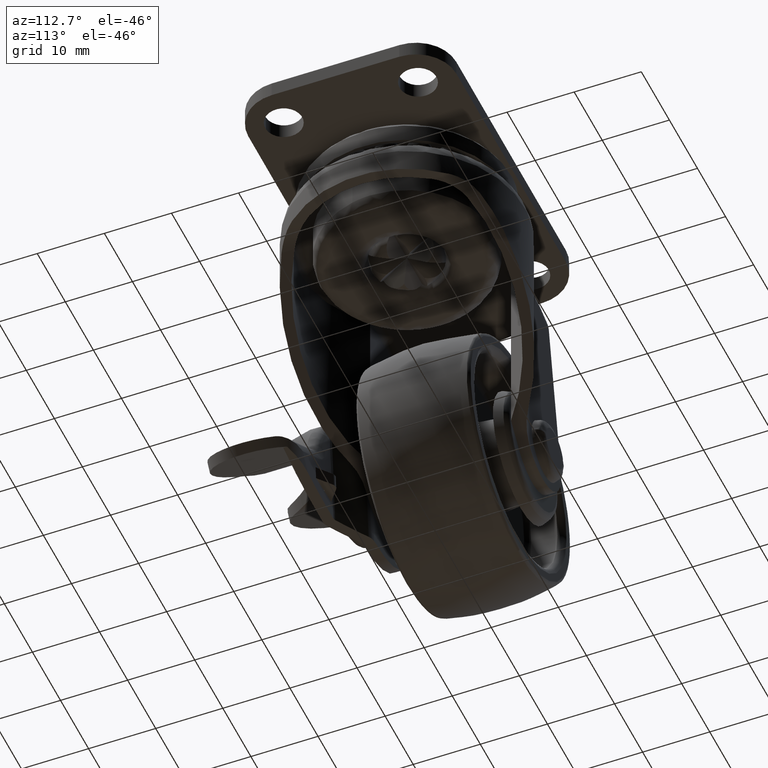
[diagram: clean part render]
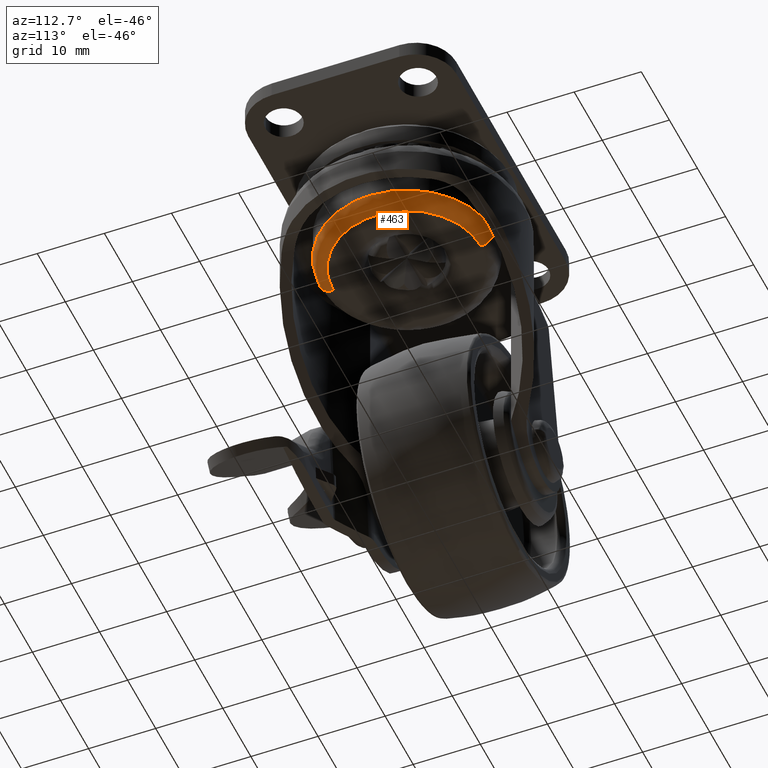
[diagram: same view with one face highlighted and labeled with its STEP entity id]
A machine part, auxiliary view. The second image highlights one B-rep face of the part: STEP entity #463.
In plain terms, the highlighted face is a freeform B-spline surface patch.
Its self-contained STEP definition (entity closure, byte-faithful):
#463=ADVANCED_FACE('',(#2620),#2619,.T.);
#2619=( BOUNDED_SURFACE() B_SPLINE_SURFACE( 2,2,((#5686,#5687,#5688,#5689,#5690),(#5691,#5692,#5693,#5694,#5695),(#5696,#5697,#5698,#5699,#5700),(#5701,#5702,#5703,#5704,#5705),(#5706,#5707,#5708,#5709,#5710)), .UNSPECIFIED.,.F.,.F.,.F.) B_SPLINE_SURFACE_WITH_KNOTS((3,2,3),(3,2,3),(0.00000000000E+00,5.00000000000E-01,1.00000000000E+00),(0.00000000000E+00,5.00000000000E-01,1.00000000000E+00), .UNSPECIFIED. ) GEOMETRIC_REPRESENTATION_ITEM() RATIONAL_B_SPLINE_SURFACE(((1.00000000000E+00,7.07106775314E-01,1.00000000000E+00,7.07106775314E-01,1.00000000000E+00),(7.07106781187E-01,4.99999995848E-01,7.07106781187E-01,4.99999995848E-01,7.07106781187E-01),(1.00000000000E+00,7.07106775314E-01,1.00000000000E+00,7.07106775314E-01,1.00000000000E+00),(7.07106781187E-01,4.99999995848E-01,7.07106781187E-01,4.99999995848E-01,7.07106781187E-01),(1.00000000000E+00,7.07106775314E-01,1.00000000000E+00,7.07106775314E-01,1.00000000000E+00))) REPRESENTATION_ITEM('') SURFACE() );
#2620=FACE_OUTER_BOUND('',#5711,.T.);
#5686=CARTESIAN_POINT('',(2.00000000000E+01,1.30000000000E+01,2.40227903966E+01));
#5687=CARTESIAN_POINT('',(2.00000000000E+01,1.30000000000E+01,2.20227903634E+01));
#5688=CARTESIAN_POINT('',(2.00000000000E+01,1.09999999668E+01,2.20227903966E+01));
#5689=CARTESIAN_POINT('',(2.00000000000E+01,8.99999993356E+00,2.20227904298E+01));
#5690=CARTESIAN_POINT('',(2.00000000000E+01,9.00000000000E+00,2.40227904630E+01));
#5691=CARTESIAN_POINT('',(3.30000000000E+01,1.30000000000E+01,2.40227903966E+01));
#5692=CARTESIAN_POINT('',(3.30000000000E+01,1.30000000000E+01,2.20227903634E+01));
#5693=CARTESIAN_POINT('',(3.09999999668E+01,1.09999999668E+01,2.20227903966E+01));
#5694=CARTESIAN_POINT('',(2.89999999336E+01,8.99999993356E+00,2.20227904298E+01));
#5695=CARTESIAN_POINT('',(2.90000000000E+01,9.00000000000E+00,2.40227904630E+01));
#5696=CARTESIAN_POINT('',(3.30000000000E+01,7.96020419446E-16,2.40227903966E+01));
#5697=CARTESIAN_POINT('',(3.30000000000E+01,1.02439750883E-15,2.20227903634E+01));
#5698=CARTESIAN_POINT('',(3.09999999668E+01,9.01932823086E-16,2.20227903966E+01));
#5699=CARTESIAN_POINT('',(2.89999999336E+01,7.79468137344E-16,2.20227904298E+01));
#5700=CARTESIAN_POINT('',(2.90000000000E+01,5.51091052030E-16,2.40227904630E+01));
#5701=CARTESIAN_POINT('',(3.30000000000E+01,-1.30000000000E+01,2.40227903966E+01));
#5702=CARTESIAN_POINT('',(3.30000000000E+01,-1.30000000000E+01,2.20227903634E+01));
#5703=CARTESIAN_POINT('',(3.09999999668E+01,-1.09999999668E+01,2.20227903966E+01));
#5704=CARTESIAN_POINT('',(2.89999999336E+01,-8.99999993356E+00,2.20227904298E+01));
#5705=CARTESIAN_POINT('',(2.90000000000E+01,-9.00000000000E+00,2.40227904630E+01));
#5706=CARTESIAN_POINT('',(2.00000000000E+01,-1.30000000000E+01,2.40227903966E+01));
#5707=CARTESIAN_POINT('',(2.00000000000E+01,-1.30000000000E+01,2.20227903634E+01));
#5708=CARTESIAN_POINT('',(2.00000000000E+01,-1.09999999668E+01,2.20227903966E+01));
#5709=CARTESIAN_POINT('',(2.00000000000E+01,-8.99999993356E+00,2.20227904298E+01));
#5710=CARTESIAN_POINT('',(2.00000000000E+01,-9.00000000000E+00,2.40227904630E+01));
#5711=EDGE_LOOP('',(#7809,#7810,#7811,#7812,#7813,#7814,#7815));
#7809=ORIENTED_EDGE('',*,*,#8660,.T.);
#7810=ORIENTED_EDGE('',*,*,#8659,.T.);
#7811=ORIENTED_EDGE('',*,*,#8566,.T.);
#7812=ORIENTED_EDGE('',*,*,#8665,.T.);
#7813=ORIENTED_EDGE('',*,*,#8666,.T.);
#7814=ORIENTED_EDGE('',*,*,#8651,.F.);
#7815=ORIENTED_EDGE('',*,*,#8667,.F.);
#8566=EDGE_CURVE('',#11999,#12000,#12001,.T.);
#8651=EDGE_CURVE('',#12553,#12560,#12561,.T.);
#8659=EDGE_CURVE('',#12615,#11999,#12616,.T.);
#8660=EDGE_CURVE('',#12622,#12615,#12623,.T.);
#8665=EDGE_CURVE('',#12000,#12650,#12657,.T.);
#8666=EDGE_CURVE('',#12650,#12560,#12663,.T.);
#8667=EDGE_CURVE('',#12622,#12553,#12669,.T.);
#11999=VERTEX_POINT('',#17324);
#12000=VERTEX_POINT('',#17325);
#12001=CIRCLE('',#17329,1.30000000000E+01);
#12553=VERTEX_POINT('',#17808);
#12560=VERTEX_POINT('',#17813);
#12561=CIRCLE('',#17817,1.10000000032E+01);
#12615=VERTEX_POINT('',#17852);
#12616=CIRCLE('',#17856,1.30000000000E+01);
#12622=VERTEX_POINT('',#17857);
#12623=CIRCLE('',#17861,1.30000000000E+01);
#12650=VERTEX_POINT('',#17877);
#12657=CIRCLE('',#17885,1.30000000000E+01);
#12663=(BOUNDED_CURVE() B_SPLINE_CURVE(2,(#17886,#17887,#17888),.UNSPECIFIED.,.F.,.F.) B_SPLINE_CURVE_WITH_KNOTS((3,3),(0.00000000000E+00,4.99999995032E-01),.UNSPECIFIED.) CURVE() GEOMETRIC_REPRESENTATION_ITEM() RATIONAL_B_SPLINE_CURVE((1.00000000000E+00,7.07106775314E-01,1.00000000000E+00)) REPRESENTATION_ITEM('') );
#12669=(BOUNDED_CURVE() B_SPLINE_CURVE(3,(#17889,#17890,#17891,#17892,#17893),.UNSPECIFIED.,.F.,.F.) B_SPLINE_CURVE_WITH_KNOTS((4,1,4),(0.00000000000E+00,2.50000107351E-01,5.00000186422E-01),.UNSPECIFIED.) CURVE() GEOMETRIC_REPRESENTATION_ITEM() RATIONAL_B_SPLINE_CURVE((1.00000000000E+00,1.00000000000E+00,1.00000000000E+00,1.00000000000E+00,1.00000000000E+00)) REPRESENTATION_ITEM('') );
#17324=CARTESIAN_POINT('',(3.26875956233E+01,-2.83282849824E+00,2.40227903966E+01));
#17325=CARTESIAN_POINT('',(2.10199526917E+01,-1.29599265625E+01,2.40227903966E+01));
#17326=CARTESIAN_POINT('',(2.00000000000E+01,-5.15409936952E-12,2.40227903966E+01));
#17327=DIRECTION('',(4.04498950472E-14,-6.95246481320E-15,-1.00000000000E+00));
#17328=DIRECTION('',(-9.75968894098E-01,2.17909884479E-01,-4.09928501399E-14));
#17329=AXIS2_PLACEMENT_3D('',#17326,#17327,#17328);
#17808=CARTESIAN_POINT('',(2.00011416125E+01,1.09999999471E+01,2.20227903966E+01));
#17813=CARTESIAN_POINT('',(2.00000000000E+01,-1.10000000001E+01,2.20227903966E+01));
#17814=CARTESIAN_POINT('',(1.99999999968E+01,3.12830103488E-09,2.20227903966E+01));
#17815=DIRECTION('',(6.45947941788E-16,1.06363963486E-34,-1.00000000000E+00));
#17816=DIRECTION('',(-1.00000000000E+00,-2.84391125714E-10,-6.45947941788E-16));
#17817=AXIS2_PLACEMENT_3D('',#17814,#17815,#17816);
#17852=CARTESIAN_POINT('',(3.30000000000E+01,0.00000000000E+00,2.40227903966E+01));
#17853=CARTESIAN_POINT('',(2.00000000000E+01,2.22266649530E-13,2.40227903966E+01));
#17854=DIRECTION('',(-8.90911276376E-14,1.64255826447E-15,-1.00000000000E+00));
#17855=DIRECTION('',(-1.00000000000E+00,1.70974345792E-14,8.90911276376E-14));
#17856=AXIS2_PLACEMENT_3D('',#17853,#17854,#17855);
#17857=CARTESIAN_POINT('',(2.00000673073E+01,1.29999999998E+01,2.40227903975E+01));
#17858=CARTESIAN_POINT('',(2.00000000000E+01,-3.55271367880E-15,2.40227903952E+01));
#17859=DIRECTION('',(5.21533773128E-09,1.74389870066E-10,-1.00000000000E+00));
#17860=DIRECTION('',(-0.00000000000E+00,-1.00000000000E+00,-1.74389870066E-10));
#17861=AXIS2_PLACEMENT_3D('',#17858,#17859,#17860);
#17877=CARTESIAN_POINT('',(2.00000000000E+01,-1.30000000000E+01,2.40227903966E+01));
#17882=CARTESIAN_POINT('',(2.00000000000E+01,2.22293294883E-11,2.40227903957E+01));
#17883=DIRECTION('',(4.48216506555E-12,-6.68029689905E-11,-1.00000000000E+00));
#17884=DIRECTION('',(4.47280846154E-05,9.99999999000E-01,-6.68027684450E-11));
#17885=AXIS2_PLACEMENT_3D('',#17882,#17883,#17884);
#17886=CARTESIAN_POINT('',(2.00000000000E+01,-1.30000000000E+01,2.40227903966E+01));
#17887=CARTESIAN_POINT('',(2.00000000000E+01,-1.30000000000E+01,2.20227903634E+01));
#17888=CARTESIAN_POINT('',(2.00000000000E+01,-1.09999999668E+01,2.20227903966E+01));
#17889=CARTESIAN_POINT('',(2.00000000000E+01,1.30000000000E+01,2.40227903966E+01));
#17890=CARTESIAN_POINT('',(2.00000000000E+01,1.30044481263E+01,2.35038893107E+01));
#17891=CARTESIAN_POINT('',(2.00000000000E+01,1.25667522800E+01,2.24560372045E+01));
#17892=CARTESIAN_POINT('',(2.00000000000E+01,1.15188999369E+01,2.20183419911E+01));
#17893=CARTESIAN_POINT('',(2.00000000000E+01,1.09999989122E+01,2.20227903966E+01));